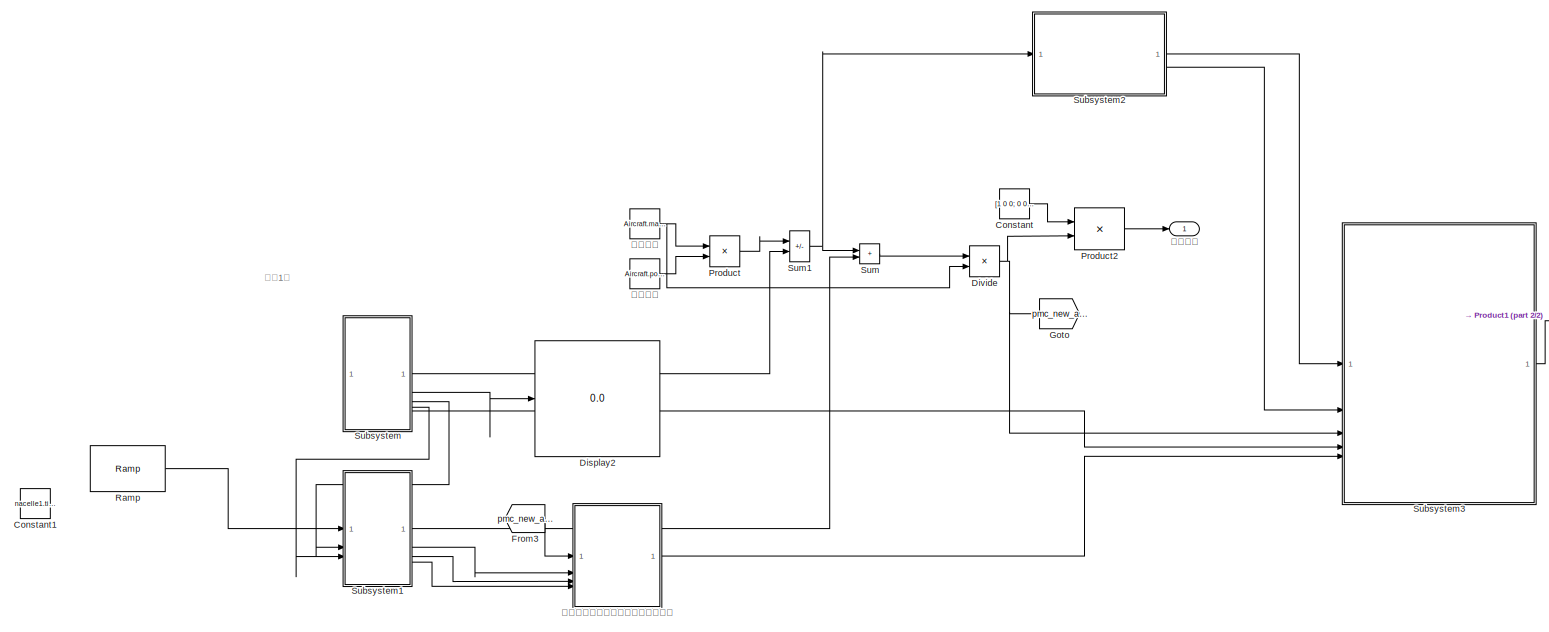
[diagram: root canvas - part 1/2, most of the canvas]
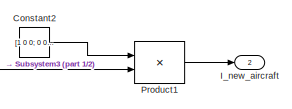
[diagram: root canvas - part 2/2, middle right region]
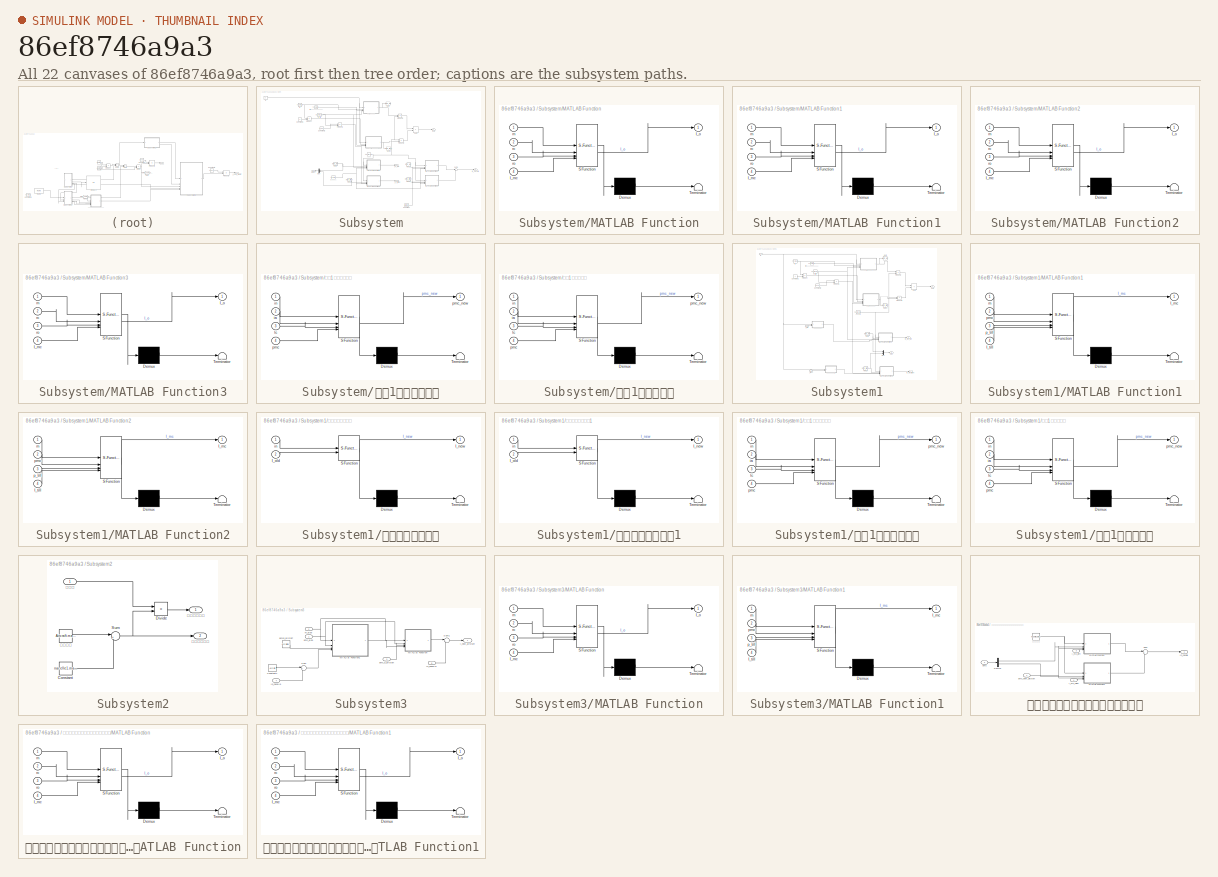
[diagram: thumbnail index - all 22 canvases of the model, root first then tree order]
MODEL slx_86ef8746a9a3
KIND model
CONFIG AbsTol = auto
CONFIG EnableMultiTasking = off
CONFIG FixedStep = auto
CONFIG MaxStep = auto
CONFIG MinStep = auto
CONFIG RelTol = 1e-3
CONFIG SampleTimeConstraint = Unconstrained
CONFIG SolverName = VariableStepAuto
CONFIG StartTime = 0.0
CONFIG StopTime = 9
BLOCK [Constant] Constant
  Value = [1 0 0; 0 0 1;0 -1 0]
BLOCK [Constant] Constant1
  Value = nacelle1.tillangle
BLOCK [Constant] Constant2
  Value = [1 0 0; 0 0 1;0 -1 0]
BLOCK [Display] Display2
  Decimation = 1
BLOCK [Product] Divide
  Inputs = */
BLOCK [From] From3
  GotoTag = pmc_new_aircraft
BLOCK [Goto] Goto
  GotoTag = pmc_new_aircraft
BLOCK [Outport] I_new_aircraft
  Port = 2
BLOCK [Product] Product
BLOCK [Product] Product1
  Multiplication = Matrix(*)
BLOCK [Product] Product2
  Multiplication = Matrix(*)
BLOCK [Reference] Ramp  REF=simulink/Sources/Ramp
  SourceBlock = simulink/Sources/Ramp
  SourceType = Ramp
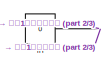
[diagram: Subsystem - part 1/3, top left region]
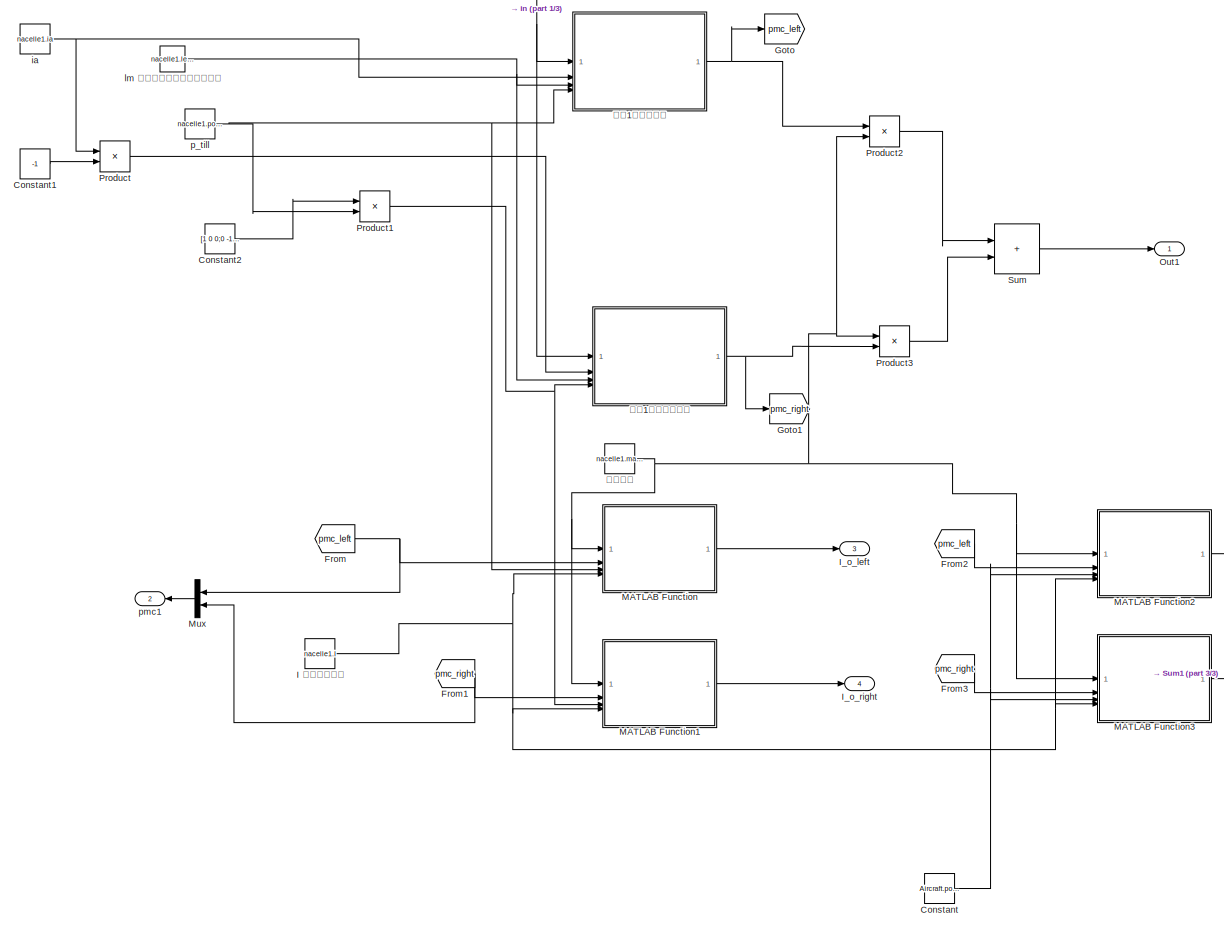
[diagram: Subsystem - part 2/3, center side, full height]
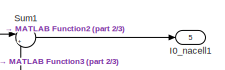
[diagram: Subsystem - part 3/3, middle right region]
BLOCK [SubSystem] Subsystem
BLOCK [Constant] Subsystem/Constant
  Value = Aircraft.position_mc
BLOCK [Constant] Subsystem/Constant1
  Value = -1
BLOCK [Constant] Subsystem/Constant2
  Value = [1 0 0;0 -1 0;0 0 1]
BLOCK [From] Subsystem/From
  GotoTag = pmc_left
BLOCK [From] Subsystem/From1
  GotoTag = pmc_right
BLOCK [From] Subsystem/From2
  GotoTag = pmc_left
BLOCK [From] Subsystem/From3
  GotoTag = pmc_right
BLOCK [Goto] Subsystem/Goto
  GotoTag = pmc_left
BLOCK [Goto] Subsystem/Goto1
  GotoTag = pmc_right
BLOCK [Constant] Subsystem/I 短舱惯量矩阵
  Value = nacelle1.I
BLOCK [Outport] Subsystem/I0_nacell1
  Port = 5
BLOCK [Outport] Subsystem/I_o_left
  Port = 3
BLOCK [Outport] Subsystem/I_o_right
  Port = 4
BLOCK [SubSystem] Subsystem/MATLAB Function
  ErrorFcn = Stateflow.Translate.translate
  PermitHierarchicalResolution = ExplicitOnly
  SFBlockType = MATLAB Function
  TreatAsAtomicUnit = on
BLOCK [Demux] Subsystem/MATLAB Function/ Demux 
  Outputs = 1
BLOCK [S-Function] Subsystem/MATLAB Function/ SFunction 
  EnableBusSupport = on
  FunctionName = sf_sfun
  PortCounts = [4 2]
  SFcnIsStateOwnerBlock = off
  SFunctionDeploymentMode = off
  Tag = Stateflow S-Function 6
BLOCK [Terminator] Subsystem/MATLAB Function/ Terminator 
BLOCK [Inport] Subsystem/MATLAB Function/I_mc
  Port = 4
BLOCK [Outport] Subsystem/MATLAB Function/I_o
BLOCK [Inport] Subsystem/MATLAB Function/m
BLOCK [Inport] Subsystem/MATLAB Function/rc
  Port = 2
BLOCK [Inport] Subsystem/MATLAB Function/ro
  Port = 3
BLOCK [SubSystem] Subsystem/MATLAB Function1
  ErrorFcn = Stateflow.Translate.translate
  PermitHierarchicalResolution = ExplicitOnly
  SFBlockType = MATLAB Function
  TreatAsAtomicUnit = on
BLOCK [Demux] Subsystem/MATLAB Function1/ Demux 
  Outputs = 1
BLOCK [S-Function] Subsystem/MATLAB Function1/ SFunction 
  EnableBusSupport = on
  FunctionName = sf_sfun
  PortCounts = [4 2]
  SFcnIsStateOwnerBlock = off
  SFunctionDeploymentMode = off
  Tag = Stateflow S-Function 7
BLOCK [Terminator] Subsystem/MATLAB Function1/ Terminator 
BLOCK [Inport] Subsystem/MATLAB Function1/I_mc
  Port = 4
BLOCK [Outport] Subsystem/MATLAB Function1/I_o
BLOCK [Inport] Subsystem/MATLAB Function1/m
BLOCK [Inport] Subsystem/MATLAB Function1/rc
  Port = 2
BLOCK [Inport] Subsystem/MATLAB Function1/ro
  Port = 3
BLOCK [SubSystem] Subsystem/MATLAB Function2
  ErrorFcn = Stateflow.Translate.translate
  PermitHierarchicalResolution = ExplicitOnly
  SFBlockType = MATLAB Function
  TreatAsAtomicUnit = on
BLOCK [Demux] Subsystem/MATLAB Function2/ Demux 
  Outputs = 1
BLOCK [S-Function] Subsystem/MATLAB Function2/ SFunction 
  EnableBusSupport = on
  FunctionName = sf_sfun
  PortCounts = [4 2]
  SFcnIsStateOwnerBlock = off
  SFunctionDeploymentMode = off
  Tag = Stateflow S-Function 15
BLOCK [Terminator] Subsystem/MATLAB Function2/ Terminator 
BLOCK [Inport] Subsystem/MATLAB Function2/I_mc
  Port = 4
BLOCK [Outport] Subsystem/MATLAB Function2/I_o
BLOCK [Inport] Subsystem/MATLAB Function2/m
BLOCK [Inport] Subsystem/MATLAB Function2/rc
  Port = 2
BLOCK [Inport] Subsystem/MATLAB Function2/ro
  Port = 3
BLOCK [SubSystem] Subsystem/MATLAB Function3
  ErrorFcn = Stateflow.Translate.translate
  PermitHierarchicalResolution = ExplicitOnly
  SFBlockType = MATLAB Function
  TreatAsAtomicUnit = on
BLOCK [Demux] Subsystem/MATLAB Function3/ Demux 
  Outputs = 1
BLOCK [S-Function] Subsystem/MATLAB Function3/ SFunction 
  EnableBusSupport = on
  FunctionName = sf_sfun
  PortCounts = [4 2]
  SFcnIsStateOwnerBlock = off
  SFunctionDeploymentMode = off
  Tag = Stateflow S-Function 16
BLOCK [Terminator] Subsystem/MATLAB Function3/ Terminator 
BLOCK [Inport] Subsystem/MATLAB Function3/I_mc
  Port = 4
BLOCK [Outport] Subsystem/MATLAB Function3/I_o
BLOCK [Inport] Subsystem/MATLAB Function3/m
BLOCK [Inport] Subsystem/MATLAB Function3/rc
  Port = 2
BLOCK [Inport] Subsystem/MATLAB Function3/ro
  Port = 3
BLOCK [Mux] Subsystem/Mux
  DisplayOption = bar
  Inputs = 2
BLOCK [Outport] Subsystem/Out1
BLOCK [Product] Subsystem/Product
BLOCK [Product] Subsystem/Product1
  Multiplication = Matrix(*)
BLOCK [Product] Subsystem/Product2
BLOCK [Product] Subsystem/Product3
BLOCK [Sum] Subsystem/Sum
  IconShape = rectangular
  Inputs = |++
BLOCK [Sum] Subsystem/Sum1
  Inputs = |++
BLOCK [Constant] Subsystem/ia 
  Value = nacelle1.ia
BLOCK [Constant] Subsystem/in
  Value = 0
BLOCK [Constant] Subsystem/lm 短舱质心距离旋转点的长度
  Value = nacelle1.length_mc
BLOCK [Constant] Subsystem/p_till
  Value = nacelle1.position_till
BLOCK [Outport] Subsystem/pmc1
  Port = 2
BLOCK [SubSystem] Subsystem/短舱1对侧计算方程
  ErrorFcn = Stateflow.Translate.translate
  PermitHierarchicalResolution = ExplicitOnly
  SFBlockType = MATLAB Function
  TreatAsAtomicUnit = on
BLOCK [Demux] Subsystem/短舱1对侧计算方程/ Demux 
  Outputs = 1
BLOCK [S-Function] Subsystem/短舱1对侧计算方程/ SFunction 
  EnableBusSupport = on
  FunctionName = sf_sfun
  PortCounts = [4 2]
  SFcnIsStateOwnerBlock = off
  SFunctionDeploymentMode = off
  Tag = Stateflow S-Function 1
BLOCK [Terminator] Subsystem/短舱1对侧计算方程/ Terminator 
BLOCK [Inport] Subsystem/短舱1对侧计算方程/ia
  Port = 2
BLOCK [Inport] Subsystem/短舱1对侧计算方程/in
BLOCK [Inport] Subsystem/短舱1对侧计算方程/lc
  Port = 3
BLOCK [Inport] Subsystem/短舱1对侧计算方程/pmc
  Port = 4
BLOCK [Outport] Subsystem/短舱1对侧计算方程/pmc_new
BLOCK [SubSystem] Subsystem/短舱1的计算方程
  ErrorFcn = Stateflow.Translate.translate
  PermitHierarchicalResolution = ExplicitOnly
  SFBlockType = MATLAB Function
  TreatAsAtomicUnit = on
BLOCK [Demux] Subsystem/短舱1的计算方程/ Demux 
  Outputs = 1
BLOCK [S-Function] Subsystem/短舱1的计算方程/ SFunction 
  EnableBusSupport = on
  FunctionName = sf_sfun
  PortCounts = [4 2]
  SFcnIsStateOwnerBlock = off
  SFunctionDeploymentMode = off
  Tag = Stateflow S-Function 2
BLOCK [Terminator] Subsystem/短舱1的计算方程/ Terminator 
BLOCK [Inport] Subsystem/短舱1的计算方程/ia
  Port = 2
BLOCK [Inport] Subsystem/短舱1的计算方程/in
BLOCK [Inport] Subsystem/短舱1的计算方程/lc
  Port = 3
BLOCK [Inport] Subsystem/短舱1的计算方程/pmc
  Port = 4
BLOCK [Outport] Subsystem/短舱1的计算方程/pmc_new
BLOCK [Constant] Subsystem/短舱重量
  Value = nacelle1.mass
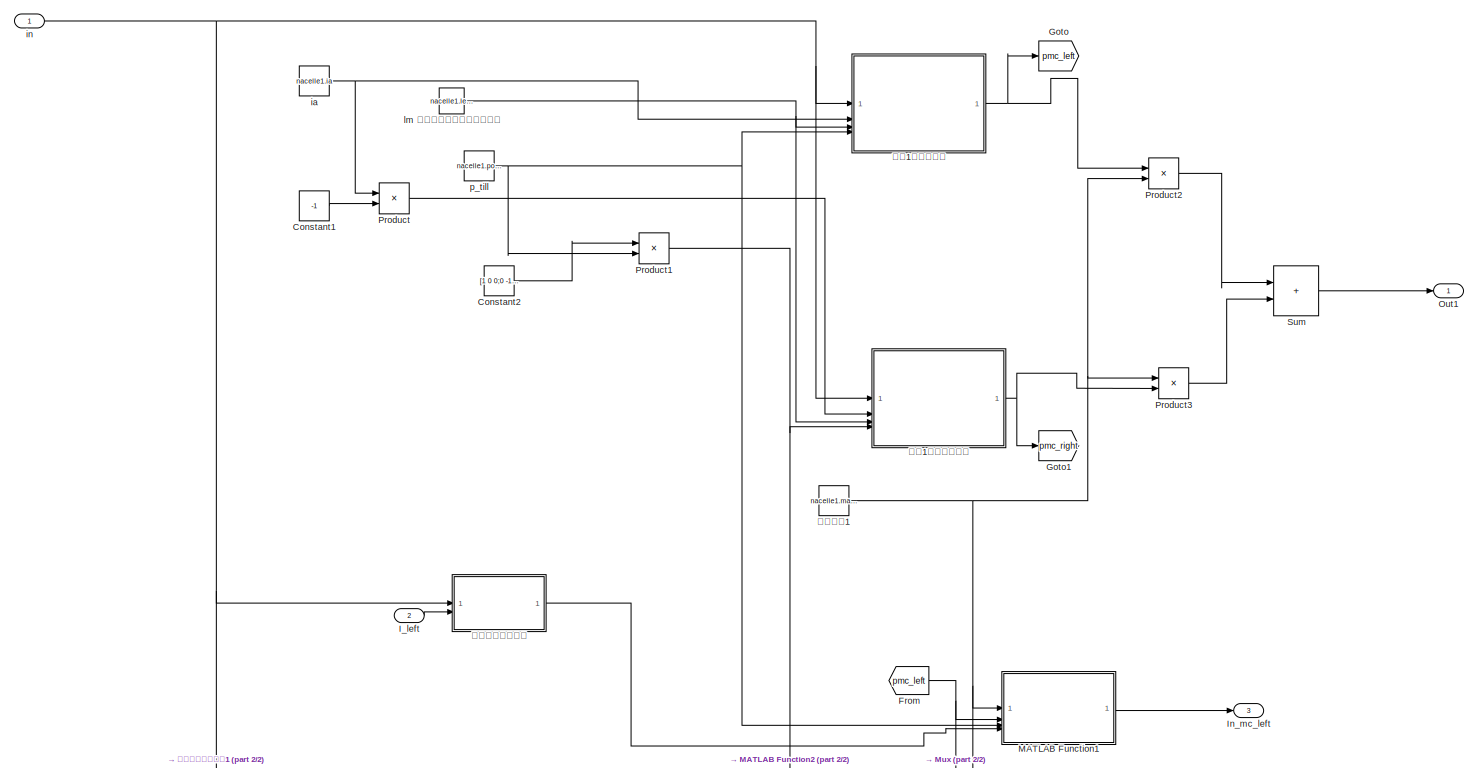
[diagram: Subsystem1 - part 1/2, full width, middle band]
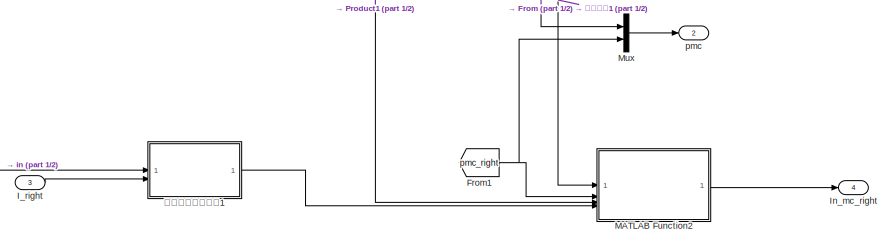
[diagram: Subsystem1 - part 2/2, bottom center region]
BLOCK [SubSystem] Subsystem1
BLOCK [Constant] Subsystem1/Constant1
  Value = -1
BLOCK [Constant] Subsystem1/Constant2
  Value = [1 0 0;0 -1 0;0 0 1]
BLOCK [From] Subsystem1/From
  GotoTag = pmc_left
BLOCK [From] Subsystem1/From1
  GotoTag = pmc_right
BLOCK [Goto] Subsystem1/Goto
  GotoTag = pmc_left
BLOCK [Goto] Subsystem1/Goto1
  GotoTag = pmc_right
BLOCK [Inport] Subsystem1/I_left
  Port = 2
BLOCK [Inport] Subsystem1/I_right
  Port = 3
BLOCK [Outport] Subsystem1/In_mc_left
  Port = 3
BLOCK [Outport] Subsystem1/In_mc_right
  Port = 4
BLOCK [SubSystem] Subsystem1/MATLAB Function1
  ErrorFcn = Stateflow.Translate.translate
  PermitHierarchicalResolution = ExplicitOnly
  SFBlockType = MATLAB Function
  TreatAsAtomicUnit = on
BLOCK [Demux] Subsystem1/MATLAB Function1/ Demux 
  Outputs = 1
BLOCK [S-Function] Subsystem1/MATLAB Function1/ SFunction 
  EnableBusSupport = on
  FunctionName = sf_sfun
  PortCounts = [4 2]
  SFcnIsStateOwnerBlock = off
  SFunctionDeploymentMode = off
  Tag = Stateflow S-Function 5
BLOCK [Terminator] Subsystem1/MATLAB Function1/ Terminator 
BLOCK [Outport] Subsystem1/MATLAB Function1/I_mc
BLOCK [Inport] Subsystem1/MATLAB Function1/I_till
  Port = 4
BLOCK [Inport] Subsystem1/MATLAB Function1/m
BLOCK [Inport] Subsystem1/MATLAB Function1/p_till
  Port = 3
BLOCK [Inport] Subsystem1/MATLAB Function1/pmc
  Port = 2
BLOCK [SubSystem] Subsystem1/MATLAB Function2
  ErrorFcn = Stateflow.Translate.translate
  PermitHierarchicalResolution = ExplicitOnly
  SFBlockType = MATLAB Function
  TreatAsAtomicUnit = on
BLOCK [Demux] Subsystem1/MATLAB Function2/ Demux 
  Outputs = 1
BLOCK [S-Function] Subsystem1/MATLAB Function2/ SFunction 
  EnableBusSupport = on
  FunctionName = sf_sfun
  PortCounts = [4 2]
  SFcnIsStateOwnerBlock = off
  SFunctionDeploymentMode = off
  Tag = Stateflow S-Function 12
BLOCK [Terminator] Subsystem1/MATLAB Function2/ Terminator 
BLOCK [Outport] Subsystem1/MATLAB Function2/I_mc
BLOCK [Inport] Subsystem1/MATLAB Function2/I_till
  Port = 4
BLOCK [Inport] Subsystem1/MATLAB Function2/m
BLOCK [Inport] Subsystem1/MATLAB Function2/p_till
  Port = 3
BLOCK [Inport] Subsystem1/MATLAB Function2/pmc
  Port = 2
BLOCK [Mux] Subsystem1/Mux
  DisplayOption = bar
  Inputs = 2
BLOCK [Outport] Subsystem1/Out1
BLOCK [Product] Subsystem1/Product
BLOCK [Product] Subsystem1/Product1
  Multiplication = Matrix(*)
BLOCK [Product] Subsystem1/Product2
BLOCK [Product] Subsystem1/Product3
BLOCK [Sum] Subsystem1/Sum
  IconShape = rectangular
  Inputs = |++
BLOCK [Constant] Subsystem1/ia 
  Value = nacelle1.ia
BLOCK [Inport] Subsystem1/in
BLOCK [Constant] Subsystem1/lm 短舱质心距离旋转点的长度
  Value = nacelle1.length_mc
BLOCK [Constant] Subsystem1/p_till
  Value = nacelle1.position_till
BLOCK [Outport] Subsystem1/pmc
  Port = 2
BLOCK [SubSystem] Subsystem1/惯性矩阵旋转方程
  ErrorFcn = Stateflow.Translate.translate
  PermitHierarchicalResolution = ExplicitOnly
  SFBlockType = MATLAB Function
  TreatAsAtomicUnit = on
BLOCK [Demux] Subsystem1/惯性矩阵旋转方程/ Demux 
  Outputs = 1
BLOCK [S-Function] Subsystem1/惯性矩阵旋转方程/ SFunction 
  EnableBusSupport = on
  FunctionName = sf_sfun
  PortCounts = [2 2]
  SFcnIsStateOwnerBlock = off
  SFunctionDeploymentMode = off
  Tag = Stateflow S-Function 10
BLOCK [Terminator] Subsystem1/惯性矩阵旋转方程/ Terminator 
BLOCK [Outport] Subsystem1/惯性矩阵旋转方程/I_new
BLOCK [Inport] Subsystem1/惯性矩阵旋转方程/I_old
  Port = 2
BLOCK [Inport] Subsystem1/惯性矩阵旋转方程/in
BLOCK [SubSystem] Subsystem1/惯性矩阵旋转方程1
  ErrorFcn = Stateflow.Translate.translate
  PermitHierarchicalResolution = ExplicitOnly
  SFBlockType = MATLAB Function
  TreatAsAtomicUnit = on
BLOCK [Demux] Subsystem1/惯性矩阵旋转方程1/ Demux 
  Outputs = 1
BLOCK [S-Function] Subsystem1/惯性矩阵旋转方程1/ SFunction 
  EnableBusSupport = on
  FunctionName = sf_sfun
  PortCounts = [2 2]
  SFcnIsStateOwnerBlock = off
  SFunctionDeploymentMode = off
  Tag = Stateflow S-Function 11
BLOCK [Terminator] Subsystem1/惯性矩阵旋转方程1/ Terminator 
BLOCK [Outport] Subsystem1/惯性矩阵旋转方程1/I_new
BLOCK [Inport] Subsystem1/惯性矩阵旋转方程1/I_old
  Port = 2
BLOCK [Inport] Subsystem1/惯性矩阵旋转方程1/in
BLOCK [SubSystem] Subsystem1/短舱1对侧计算方程
  ErrorFcn = Stateflow.Translate.translate
  PermitHierarchicalResolution = ExplicitOnly
  SFBlockType = MATLAB Function
  TreatAsAtomicUnit = on
BLOCK [Demux] Subsystem1/短舱1对侧计算方程/ Demux 
  Outputs = 1
BLOCK [S-Function] Subsystem1/短舱1对侧计算方程/ SFunction 
  EnableBusSupport = on
  FunctionName = sf_sfun
  PortCounts = [4 2]
  SFcnIsStateOwnerBlock = off
  SFunctionDeploymentMode = off
  Tag = Stateflow S-Function 3
BLOCK [Terminator] Subsystem1/短舱1对侧计算方程/ Terminator 
BLOCK [Inport] Subsystem1/短舱1对侧计算方程/ia
  Port = 2
BLOCK [Inport] Subsystem1/短舱1对侧计算方程/in
BLOCK [Inport] Subsystem1/短舱1对侧计算方程/lc
  Port = 3
BLOCK [Inport] Subsystem1/短舱1对侧计算方程/pmc
  Port = 4
BLOCK [Outport] Subsystem1/短舱1对侧计算方程/pmc_new
BLOCK [SubSystem] Subsystem1/短舱1的计算方程
  ErrorFcn = Stateflow.Translate.translate
  PermitHierarchicalResolution = ExplicitOnly
  SFBlockType = MATLAB Function
  TreatAsAtomicUnit = on
BLOCK [Demux] Subsystem1/短舱1的计算方程/ Demux 
  Outputs = 1
BLOCK [S-Function] Subsystem1/短舱1的计算方程/ SFunction 
  EnableBusSupport = on
  FunctionName = sf_sfun
  PortCounts = [4 2]
  SFcnIsStateOwnerBlock = off
  SFunctionDeploymentMode = off
  Tag = Stateflow S-Function 4
BLOCK [Terminator] Subsystem1/短舱1的计算方程/ Terminator 
BLOCK [Inport] Subsystem1/短舱1的计算方程/ia
  Port = 2
BLOCK [Inport] Subsystem1/短舱1的计算方程/in
BLOCK [Inport] Subsystem1/短舱1的计算方程/lc
  Port = 3
BLOCK [Inport] Subsystem1/短舱1的计算方程/pmc
  Port = 4
BLOCK [Outport] Subsystem1/短舱1的计算方程/pmc_new
BLOCK [Constant] Subsystem1/短舱质量1
  Value = nacelle1.mass
BLOCK [SubSystem] Subsystem2
BLOCK [Constant] Subsystem2/Constant
  Value = nacelle1.mass*2
BLOCK [Product] Subsystem2/Divide
  Inputs = */
BLOCK [Sum] Subsystem2/Sum
  Inputs = |+-
BLOCK [Constant] Subsystem2/全机重量
  Value = Aircraft.mass
BLOCK [Outport] Subsystem2/其余物体质心
BLOCK [Outport] Subsystem2/其余物体质量
  Port = 2
BLOCK [Inport] Subsystem2/质心积
BLOCK [SubSystem] Subsystem3
BLOCK [Constant] Subsystem3/Constant1
  Value = Aircraft.I
BLOCK [Inport] Subsystem3/I0_nacelle
  Port = 4
BLOCK [Outport] Subsystem3/I_new_aircraft
BLOCK [Inport] Subsystem3/In_nacelle
  Port = 5
BLOCK [SubSystem] Subsystem3/MATLAB Function
  ErrorFcn = Stateflow.Translate.translate
  PermitHierarchicalResolution = ExplicitOnly
  SFBlockType = MATLAB Function
  TreatAsAtomicUnit = on
BLOCK [Demux] Subsystem3/MATLAB Function/ Demux 
  Outputs = 1
BLOCK [S-Function] Subsystem3/MATLAB Function/ SFunction 
  EnableBusSupport = on
  FunctionName = sf_sfun
  PortCounts = [4 2]
  SFcnIsStateOwnerBlock = off
  SFunctionDeploymentMode = off
  Tag = Stateflow S-Function 9
BLOCK [Terminator] Subsystem3/MATLAB Function/ Terminator 
BLOCK [Inport] Subsystem3/MATLAB Function/I_mc
  Port = 4
BLOCK [Outport] Subsystem3/MATLAB Function/I_o
BLOCK [Inport] Subsystem3/MATLAB Function/m
BLOCK [Inport] Subsystem3/MATLAB Function/rc
  Port = 2
BLOCK [Inport] Subsystem3/MATLAB Function/ro
  Port = 3
BLOCK [SubSystem] Subsystem3/MATLAB Function1
  ErrorFcn = Stateflow.Translate.translate
  PermitHierarchicalResolution = ExplicitOnly
  SFBlockType = MATLAB Function
  TreatAsAtomicUnit = on
BLOCK [Demux] Subsystem3/MATLAB Function1/ Demux 
  Outputs = 1
BLOCK [S-Function] Subsystem3/MATLAB Function1/ SFunction 
  EnableBusSupport = on
  FunctionName = sf_sfun
  PortCounts = [4 2]
  SFcnIsStateOwnerBlock = off
  SFunctionDeploymentMode = off
  Tag = Stateflow S-Function 13
BLOCK [Terminator] Subsystem3/MATLAB Function1/ Terminator 
BLOCK [Outport] Subsystem3/MATLAB Function1/I_mc
BLOCK [Inport] Subsystem3/MATLAB Function1/I_till
  Port = 4
BLOCK [Inport] Subsystem3/MATLAB Function1/m
BLOCK [Inport] Subsystem3/MATLAB Function1/p_till
  Port = 3
BLOCK [Inport] Subsystem3/MATLAB Function1/pmc
  Port = 2
BLOCK [Sum] Subsystem3/Sum
  Inputs = |+-
BLOCK [Sum] Subsystem3/Sum1
  Inputs = |++
BLOCK [Inport] Subsystem3/m_else
  Port = 2
BLOCK [Constant] Subsystem3/pmc0_aircraft
  Value = Aircraft.position_mc
BLOCK [Inport] Subsystem3/pmc_else
BLOCK [Inport] Subsystem3/pmc_n_aircraft
  Port = 3
BLOCK [Sum] Sum
  IconShape = rectangular
BLOCK [Sum] Sum1
  IconShape = rectangular
  Inputs = +-
BLOCK [Constant] 全机质心
  Value = Aircraft.position_mc
BLOCK [Constant] 全机质量
  Value = Aircraft.mass
BLOCK [Outport] 整机质心
BLOCK [SubSystem] 计算短舱相对于整机质心的转动惯量
BLOCK [Demux] 计算短舱相对于整机质心的转动惯量/Demux
  Outputs = 2
BLOCK [Inport] 计算短舱相对于整机质心的转动惯量/I_mc_left
  Port = 3
BLOCK [Inport] 计算短舱相对于整机质心的转动惯量/I_mc_right
  Port = 4
BLOCK [Outport] 计算短舱相对于整机质心的转动惯量/In_nacell1
BLOCK [SubSystem] 计算短舱相对于整机质心的转动惯量/MATLAB Function
  ErrorFcn = Stateflow.Translate.translate
  PermitHierarchicalResolution = ExplicitOnly
  SFBlockType = MATLAB Function
  TreatAsAtomicUnit = on
BLOCK [Demux] 计算短舱相对于整机质心的转动惯量/MATLAB Function/ Demux 
  Outputs = 1
BLOCK [S-Function] 计算短舱相对于整机质心的转动惯量/MATLAB Function/ SFunction 
  EnableBusSupport = on
  FunctionName = sf_sfun
  PortCounts = [4 2]
  SFcnIsStateOwnerBlock = off
  SFunctionDeploymentMode = off
  Tag = Stateflow S-Function 8
BLOCK [Terminator] 计算短舱相对于整机质心的转动惯量/MATLAB Function/ Terminator 
BLOCK [Inport] 计算短舱相对于整机质心的转动惯量/MATLAB Function/I_mc
  Port = 4
BLOCK [Outport] 计算短舱相对于整机质心的转动惯量/MATLAB Function/I_o
BLOCK [Inport] 计算短舱相对于整机质心的转动惯量/MATLAB Function/m
BLOCK [Inport] 计算短舱相对于整机质心的转动惯量/MATLAB Function/rc
  Port = 2
BLOCK [Inport] 计算短舱相对于整机质心的转动惯量/MATLAB Function/ro
  Port = 3
BLOCK [SubSystem] 计算短舱相对于整机质心的转动惯量/MATLAB Function1
  ErrorFcn = Stateflow.Translate.translate
  PermitHierarchicalResolution = ExplicitOnly
  SFBlockType = MATLAB Function
  TreatAsAtomicUnit = on
BLOCK [Demux] 计算短舱相对于整机质心的转动惯量/MATLAB Function1/ Demux 
  Outputs = 1
BLOCK [S-Function] 计算短舱相对于整机质心的转动惯量/MATLAB Function1/ SFunction 
  EnableBusSupport = on
  FunctionName = sf_sfun
  PortCounts = [4 2]
  SFcnIsStateOwnerBlock = off
  SFunctionDeploymentMode = off
  Tag = Stateflow S-Function 14
BLOCK [Terminator] 计算短舱相对于整机质心的转动惯量/MATLAB Function1/ Terminator 
BLOCK [Inport] 计算短舱相对于整机质心的转动惯量/MATLAB Function1/I_mc
  Port = 4
BLOCK [Outport] 计算短舱相对于整机质心的转动惯量/MATLAB Function1/I_o
BLOCK [Inport] 计算短舱相对于整机质心的转动惯量/MATLAB Function1/m
BLOCK [Inport] 计算短舱相对于整机质心的转动惯量/MATLAB Function1/rc
  Port = 2
BLOCK [Inport] 计算短舱相对于整机质心的转动惯量/MATLAB Function1/ro
  Port = 3
BLOCK [Sum] 计算短舱相对于整机质心的转动惯量/Sum
  Inputs = |++
BLOCK [Inport] 计算短舱相对于整机质心的转动惯量/pmc
  Port = 2
BLOCK [Inport] 计算短舱相对于整机质心的转动惯量/pmc_new_aircraft
BLOCK [Constant] 计算短舱相对于整机质心的转动惯量/短舱重量
  Value = nacelle1.mass
ANNOTATION (root): 短舱1区
LINE Constant2:1 -> Product1:1
LINE Constant:1 -> Product2:1
NET Divide:1 -> Goto:1, Product2:2, Subsystem3:3
LINE From3:1 -> 计算短舱相对于整机质心的转动惯量:1
LINE Product1:1 -> I_new_aircraft:1
LINE Product2:1 -> 整机质心:1
LINE Product:1 -> Sum1:1
LINE Ramp:1 -> Subsystem1:1
LINE Subsystem/Constant1:1 -> Subsystem/Product:2
LINE Subsystem/Constant2:1 -> Subsystem/Product1:1
NET Subsystem/Constant:1 -> Subsystem/MATLAB Function2:3, Subsystem/MATLAB Function3:3
NET Subsystem/From1:1 -> Subsystem/MATLAB Function1:2, Subsystem/Mux:2
LINE Subsystem/From2:1 -> Subsystem/MATLAB Function2:2
LINE Subsystem/From3:1 -> Subsystem/MATLAB Function3:2
NET Subsystem/From:1 -> Subsystem/MATLAB Function:2, Subsystem/Mux:1
NET Subsystem/I 短舱惯量矩阵:1 -> Subsystem/MATLAB Function1:4, Subsystem/MATLAB Function2:4, Subsystem/MATLAB Function3:4, Subsystem/MATLAB Function:4
LINE Subsystem/MATLAB Function1:1 -> Subsystem/I_o_right:1
LINE Subsystem/MATLAB Function2:1 -> Subsystem/Sum1:1
LINE Subsystem/MATLAB Function3:1 -> Subsystem/Sum1:2
LINE Subsystem/MATLAB Function:1 -> Subsystem/I_o_left:1
LINE Subsystem/Mux:1 -> Subsystem/pmc1:1
NET Subsystem/Product1:1 -> Subsystem/MATLAB Function1:3, Subsystem/短舱1对侧计算方程:4
LINE Subsystem/Product2:1 -> Subsystem/Sum:1
LINE Subsystem/Product3:1 -> Subsystem/Sum:2
LINE Subsystem/Product:1 -> Subsystem/短舱1对侧计算方程:2
LINE Subsystem/Sum1:1 -> Subsystem/I0_nacell1:1
LINE Subsystem/Sum:1 -> Subsystem/Out1:1
NET Subsystem/ia :1 -> Subsystem/Product:1, Subsystem/短舱1的计算方程:2
NET Subsystem/in:1 -> Subsystem/短舱1对侧计算方程:1, Subsystem/短舱1的计算方程:1
NET Subsystem/lm 短舱质心距离旋转点的长度:1 -> Subsystem/短舱1对侧计算方程:3, Subsystem/短舱1的计算方程:3
NET Subsystem/p_till:1 -> Subsystem/MATLAB Function:3, Subsystem/Product1:2, Subsystem/短舱1的计算方程:4
NET Subsystem/短舱1对侧计算方程:1 -> Subsystem/Goto1:1, Subsystem/Product3:2
NET Subsystem/短舱1的计算方程:1 -> Subsystem/Goto:1, Subsystem/Product2:1
NET Subsystem/短舱重量:1 -> Subsystem/MATLAB Function1:1, Subsystem/MATLAB Function2:1, Subsystem/MATLAB Function3:1, Subsystem/MATLAB Function:1, Subsystem/Product2:2, Subsystem/Product3:1
LINE Subsystem1/Constant1:1 -> Subsystem1/Product:2
LINE Subsystem1/Constant2:1 -> Subsystem1/Product1:1
NET Subsystem1/From1:1 -> Subsystem1/MATLAB Function2:2, Subsystem1/Mux:2
NET Subsystem1/From:1 -> Subsystem1/MATLAB Function1:2, Subsystem1/Mux:1
LINE Subsystem1/I_left:1 -> Subsystem1/惯性矩阵旋转方程:2
LINE Subsystem1/I_right:1 -> Subsystem1/惯性矩阵旋转方程1:2
LINE Subsystem1/MATLAB Function1:1 -> Subsystem1/In_mc_left:1
LINE Subsystem1/MATLAB Function2:1 -> Subsystem1/In_mc_right:1
LINE Subsystem1/Mux:1 -> Subsystem1/pmc:1
NET Subsystem1/Product1:1 -> Subsystem1/MATLAB Function2:3, Subsystem1/短舱1对侧计算方程:4
LINE Subsystem1/Product2:1 -> Subsystem1/Sum:1
LINE Subsystem1/Product3:1 -> Subsystem1/Sum:2
LINE Subsystem1/Product:1 -> Subsystem1/短舱1对侧计算方程:2
LINE Subsystem1/Sum:1 -> Subsystem1/Out1:1
NET Subsystem1/ia :1 -> Subsystem1/Product:1, Subsystem1/短舱1的计算方程:2
NET Subsystem1/in:1 -> Subsystem1/惯性矩阵旋转方程1:1, Subsystem1/惯性矩阵旋转方程:1, Subsystem1/短舱1对侧计算方程:1, Subsystem1/短舱1的计算方程:1
NET Subsystem1/lm 短舱质心距离旋转点的长度:1 -> Subsystem1/短舱1对侧计算方程:3, Subsystem1/短舱1的计算方程:3
NET Subsystem1/p_till:1 -> Subsystem1/MATLAB Function1:3, Subsystem1/Product1:2, Subsystem1/短舱1的计算方程:4
LINE Subsystem1/惯性矩阵旋转方程1:1 -> Subsystem1/MATLAB Function2:4
LINE Subsystem1/惯性矩阵旋转方程:1 -> Subsystem1/MATLAB Function1:4
NET Subsystem1/短舱1对侧计算方程:1 -> Subsystem1/Goto1:1, Subsystem1/Product3:2
NET Subsystem1/短舱1的计算方程:1 -> Subsystem1/Goto:1, Subsystem1/Product2:1
NET Subsystem1/短舱质量1:1 -> Subsystem1/MATLAB Function1:1, Subsystem1/MATLAB Function2:1, Subsystem1/Product2:2, Subsystem1/Product3:1
LINE Subsystem1:1 -> Sum:2
LINE Subsystem1:2 -> 计算短舱相对于整机质心的转动惯量:2
LINE Subsystem1:3 -> 计算短舱相对于整机质心的转动惯量:3
LINE Subsystem1:4 -> 计算短舱相对于整机质心的转动惯量:4
LINE Subsystem2/Constant:1 -> Subsystem2/Sum:2
LINE Subsystem2/Divide:1 -> Subsystem2/其余物体质心:1
NET Subsystem2/Sum:1 -> Subsystem2/Divide:2, Subsystem2/其余物体质量:1
LINE Subsystem2/全机重量:1 -> Subsystem2/Sum:1
LINE Subsystem2/质心积:1 -> Subsystem2/Divide:1
LINE Subsystem2:1 -> Subsystem3:1
LINE Subsystem2:2 -> Subsystem3:2
LINE Subsystem3/Constant1:1 -> Subsystem3/Sum:1
LINE Subsystem3/I0_nacelle:1 -> Subsystem3/Sum:2
LINE Subsystem3/In_nacelle:1 -> Subsystem3/Sum1:2
LINE Subsystem3/MATLAB Function1:1 -> Subsystem3/MATLAB Function:4
LINE Subsystem3/MATLAB Function:1 -> Subsystem3/Sum1:1
LINE Subsystem3/Sum1:1 -> Subsystem3/I_new_aircraft:1
LINE Subsystem3/Sum:1 -> Subsystem3/MATLAB Function1:4
NET Subsystem3/m_else:1 -> Subsystem3/MATLAB Function1:1, Subsystem3/MATLAB Function:1
LINE Subsystem3/pmc0_aircraft:1 -> Subsystem3/MATLAB Function1:3
NET Subsystem3/pmc_else:1 -> Subsystem3/MATLAB Function1:2, Subsystem3/MATLAB Function:2
LINE Subsystem3/pmc_n_aircraft:1 -> Subsystem3/MATLAB Function:3
LINE Subsystem3:1 -> Product1:2
LINE Subsystem:1 -> Sum1:2
LINE Subsystem:2 -> Display2:1
LINE Subsystem:3 -> Subsystem1:2
LINE Subsystem:4 -> Subsystem1:3
LINE Subsystem:5 -> Subsystem3:4
NET Sum1:1 -> Subsystem2:1, Sum:1
LINE Sum:1 -> Divide:1
LINE 全机质心:1 -> Product:2
NET 全机质量:1 -> Divide:2, Product:1
LINE 计算短舱相对于整机质心的转动惯量/Demux:1 -> 计算短舱相对于整机质心的转动惯量/MATLAB Function:2
LINE 计算短舱相对于整机质心的转动惯量/Demux:2 -> 计算短舱相对于整机质心的转动惯量/MATLAB Function1:2
LINE 计算短舱相对于整机质心的转动惯量/I_mc_left:1 -> 计算短舱相对于整机质心的转动惯量/MATLAB Function:4
LINE 计算短舱相对于整机质心的转动惯量/I_mc_right:1 -> 计算短舱相对于整机质心的转动惯量/MATLAB Function1:4
LINE 计算短舱相对于整机质心的转动惯量/MATLAB Function1:1 -> 计算短舱相对于整机质心的转动惯量/Sum:2
LINE 计算短舱相对于整机质心的转动惯量/MATLAB Function:1 -> 计算短舱相对于整机质心的转动惯量/Sum:1
LINE 计算短舱相对于整机质心的转动惯量/Sum:1 -> 计算短舱相对于整机质心的转动惯量/In_nacell1:1
LINE 计算短舱相对于整机质心的转动惯量/pmc:1 -> 计算短舱相对于整机质心的转动惯量/Demux:1
NET 计算短舱相对于整机质心的转动惯量/pmc_new_aircraft:1 -> 计算短舱相对于整机质心的转动惯量/MATLAB Function1:3, 计算短舱相对于整机质心的转动惯量/MATLAB Function:3
NET 计算短舱相对于整机质心的转动惯量/短舱重量:1 -> 计算短舱相对于整机质心的转动惯量/MATLAB Function1:1, 计算短舱相对于整机质心的转动惯量/MATLAB Function:1
LINE 计算短舱相对于整机质心的转动惯量:1 -> Subsystem3:5
note: NET lines group one-source signal fan-out (src -> all destinations, sorted); 1:1 wires keep LINE
CHART Subsystem1/惯性矩阵旋转方程 states=1 transitions=1
  STATE_LABEL 'eML_blk_kernel()'
  STATE_LABEL "SCRIPT:\nfunction I_new = fcn(in,I_old)\nin=-in/57.3;\nR=[cos(in),0,sin(in);\n    0 1 0;\n    -sin(in) 0 cos(in)]\n\n\nI_new = R*I_old*R';\n"
CHART Subsystem1/惯性矩阵旋转方程1 states=1 transitions=1
  STATE_LABEL 'eML_blk_kernel()'
  STATE_LABEL "SCRIPT:\nfunction I_new = fcn(in,I_old)\nin=-in/57.3;\nR=[cos(in),0,sin(in);\n    0 1 0;\n    -sin(in) 0 cos(in)]\n\n\nI_new = R*I_old*R';\n"
CHART Subsystem1/MATLAB Function2 states=1 transitions=1
  STATE_LABEL 'eML_blk_kernel()'
  STATE_LABEL 'SCRIPT:\nfunction I_mc = fcn(m,pmc,p_till,I_till)\n\n\n\nx2=(p_till(1)-pmc(1))^2;\ny2=(p_till(2)-pmc(2))^2;\nz2=(p_till(3)-pmc(3))^2;\n\n\nIxx=I_till(1,1)-m*(y2+z2);\nIyy=I_till(2,2)-m*(x2+z2);\nIzz=I_till(3,3)-m*(y2+z2);\n\nIxy=I_till(1,2)-m*(p_till(1)-pmc(1))*(p_till(2)-pmc(2));\n\nIyz=I_till(2,3)-m*(p_till(3)-pmc(3))*(p_till(2)-pmc(2));\nIxz=I_till(1,3)-m*(p_till(1)-pmc(1))*(p_till(3)-pmc(3));\nI_mc = [Ixx,Ixy,I...<+40ch>'  <repeated x3 — deduplicated; at blocks: MATLAB Function2, MATLAB Function1>
CHART Subsystem/短舱1对侧计算方程 states=1 transitions=1
  STATE_LABEL 'eML_blk_kernel()'
  STATE_LABEL "SCRIPT:\nfunction pmc_new  = fcn(in,ia,lc,pmc)\nin=in/57.3;\npmc_new=pmc+[-lc*cos(in),lc*sin(ia),lc*cos(ia)*sin(in)]';\n"
CHART Subsystem3/MATLAB Function1 states=1 transitions=1
  STATE_LABEL 'eML_blk_kernel()'
CHART 计算短舱相对于整机质心的转动惯量/MATLAB Function1 states=1 transitions=1
  STATE_LABEL 'eML_blk_kernel()'
  STATE_LABEL 'SCRIPT:\nfunction I_o = fcn(m,rc,ro,I_mc)\nx2=(rc(1)-ro(1))^2;\ny2=(rc(2)-ro(2))^2;\nz2=(rc(3)-ro(3))^2;\n\n\nIxx=I_mc(1,1)+m*(y2+z2);\nIyy=I_mc(2,2)+m*(x2+z2);\nIzz=I_mc(3,3)+m*(y2+z2);\n\nIxy=I_mc(1,2)+m*(ro(1)-rc(1))*(ro(2)-rc(2));\n\nIyz=I_mc(2,3)+m*(ro(3)-rc(3))*(ro(2)-rc(2));\nIxz=I_mc(1,3)+m*(ro(1)-rc(1))*(ro(3)-rc(3));\nI_o = [Ixx,Ixy,Ixz;\n    Ixy,Iyy,Iyz;\n    Ixz,Iyz,Izz];\n'  <repeated x7 — deduplicated; at blocks: MATLAB Function1, MATLAB Function2, MATLAB Function3, MATLAB Function>
CHART Subsystem/MATLAB Function2 states=1 transitions=1
  STATE_LABEL 'eML_blk_kernel()'
CHART Subsystem/MATLAB Function3 states=1 transitions=1
  STATE_LABEL 'eML_blk_kernel()'
CHART Subsystem/短舱1的计算方程 states=1 transitions=1
  STATE_LABEL 'eML_blk_kernel()'
  STATE_LABEL "SCRIPT:\nfunction pmc_new  = fcn(in,ia,lc,pmc)\n\nin=in/57.3;\npmc_new=pmc+[-lc*cos(in),lc*sin(ia),lc*cos(ia)*sin(in)]';\n"
CHART Subsystem1/短舱1对侧计算方程 states=1 transitions=1
  STATE_LABEL 'eML_blk_kernel()'
  STATE_LABEL "SCRIPT:\nfunction pmc_new  = fcn(in,ia,lc,pmc)\nin=in/57.3;\npmc_new=pmc+[-lc*cos(in),lc*sin(ia),lc*cos(ia)*sin(in)]';\n"
CHART Subsystem1/短舱1的计算方程 states=1 transitions=1
  STATE_LABEL 'eML_blk_kernel()'
  STATE_LABEL "SCRIPT:\nfunction pmc_new  = fcn(in,ia,lc,pmc)\nin=in/57.3;\npmc_new=pmc+[-lc*cos(in),lc*sin(ia),lc*cos(ia)*sin(in)]';\n"
CHART Subsystem1/MATLAB Function1 states=1 transitions=1
  STATE_LABEL 'eML_blk_kernel()'
CHART Subsystem/MATLAB Function states=1 transitions=1
  STATE_LABEL 'eML_blk_kernel()'
CHART Subsystem/MATLAB Function1 states=1 transitions=1
  STATE_LABEL 'eML_blk_kernel()'
CHART 计算短舱相对于整机质心的转动惯量/MATLAB Function states=1 transitions=1
  STATE_LABEL 'eML_blk_kernel()'
CHART Subsystem3/MATLAB Function states=1 transitions=1
  STATE_LABEL 'eML_blk_kernel()'
CHART  states=0 transitions=0
CHART  states=0 transitions=0
CHART  states=0 transitions=0
CHART  states=0 transitions=0
CHART  states=0 transitions=0
CHART  states=0 transitions=0
CHART  states=0 transitions=0
CHART  states=0 transitions=0
CHART  states=0 transitions=0
CHART  states=0 transitions=0
CHART  states=0 transitions=0
CHART  states=0 transitions=0
CHART  states=0 transitions=0
CHART  states=0 transitions=0
CHART  states=0 transitions=0
CHART  states=0 transitions=0
